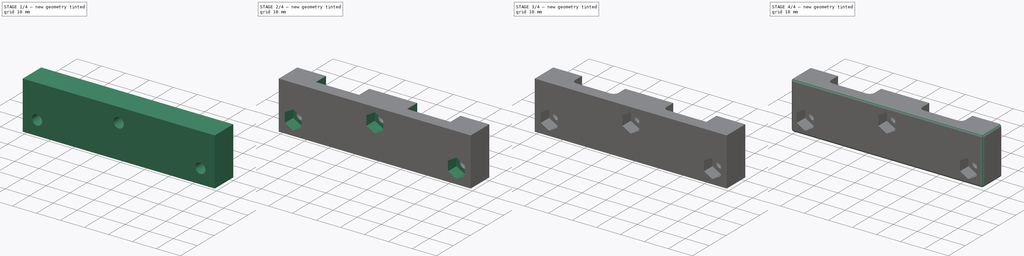
[diagram: build sequence overview — one tinted view per stage of 4, left to right]
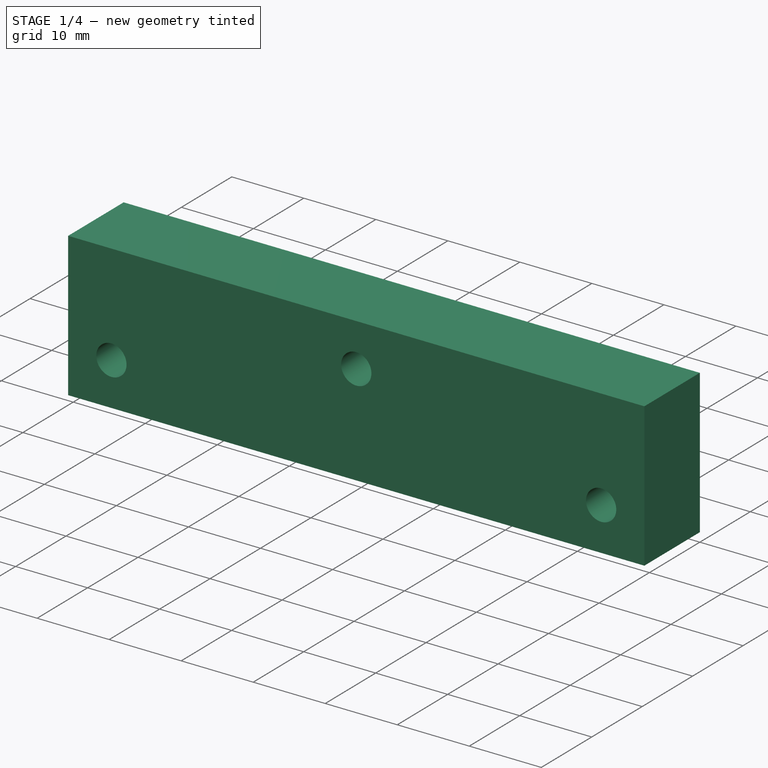
[diagram: stage 1 of 4 — iso view after this stage's code; geometry added in this stage tinted green]
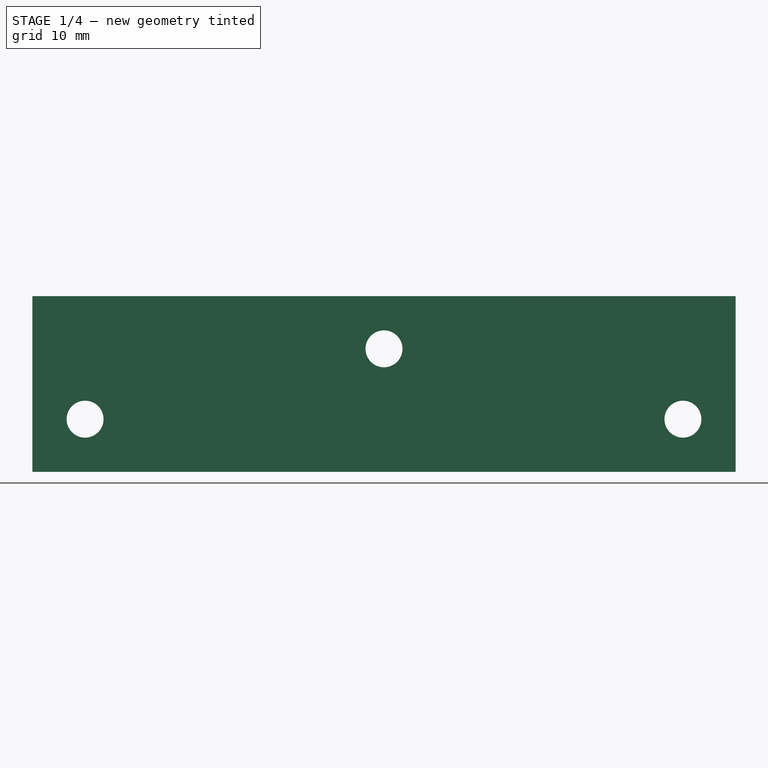
[diagram: stage 1 of 4 — front view after this stage's code; geometry added in this stage tinted green]
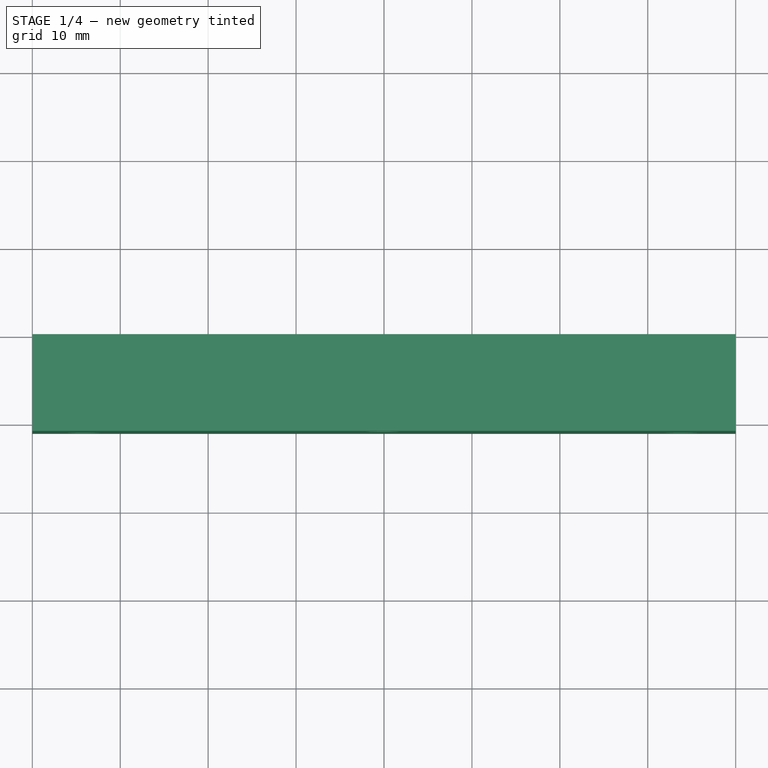
[diagram: stage 1 of 4 — top view after this stage's code; geometry added in this stage tinted green]
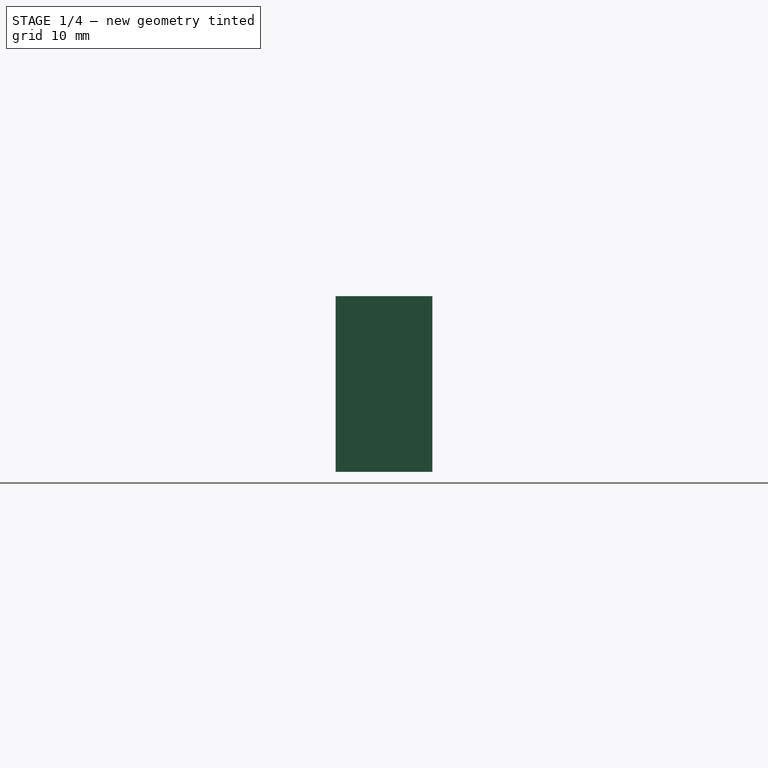
[diagram: stage 1 of 4 — right view after this stage's code; geometry added in this stage tinted green]
FCSTD DOCUMENT  (FreeCAD 0.17R13541 (Git))
Label: back-light
License: All rights reserved
LicenseURL: http://en.wikipedia.org/wiki/All_rights_reserved
objects: PartDesign::Fillet×5, Sketcher::SketchObject×4, PartDesign::Pocket×3, PartDesign::Pad×1, PartDesign::Body×1
note: 18 computed .brp shape members not serialized (recipe doc carries the construction recipe); baked Part::Feature solids carry a one-line shape summary decoded from their .brp

FEATURE [Sketcher::SketchObject] Sketch  label="sketch body"
  MapMode = 5
  Placement = pos=(0,0,0) rot=(1,0,0;1.5708rad)
  Support = -> [XZ_Plane]
  sketch-geometry (4):
    g0: LineSegment StartX=0 StartY=0 StartZ=0 EndX=80 EndY=0 EndZ=0
    g1: LineSegment StartX=80 StartY=0 StartZ=0 EndX=80 EndY=20 EndZ=0
    g2: LineSegment StartX=80 StartY=20 StartZ=0 EndX=0 EndY=20 EndZ=0
    g3: LineSegment StartX=0 StartY=20 StartZ=0 EndX=0 EndY=0 EndZ=0
  constraints (11):
    c: Coincident(g0,g1)
    c: Coincident(g1,g2)
    c: Coincident(g2,g3)
    c: Coincident(g3,g0)
    c: Horizontal(g0)
    c: Horizontal(g2)
    c: Vertical(g1)
    c: Vertical(g3)
    c: Coincident(g0,g-1)
    c: DistanceX(g2,g2) = 80
    c: DistanceY(g3,g3) = 20
FEATURE [PartDesign::Pad] Pad
  Length = 11
  Length2 = 100
  Placement = pos=(0,0,0) rot=(1,0,0;1.5708rad)
  Profile = -> Sketch
  Type = 0
FEATURE [Sketcher::SketchObject] Sketch001  label="M4 holes"
  MapMode = 5
  Placement = pos=(0,-11,0) rot=(1,0,0;1.5708rad)
  Support = -> [Pad]
  sketch-geometry (6):
    g0: Circle CenterX=6 CenterY=6 CenterZ=0 NormalX=0 NormalY=0 NormalZ=1 AngleXU=0 Radius=2.1
    g1: Circle CenterX=40 CenterY=14 CenterZ=0 NormalX=0 NormalY=0 NormalZ=1 AngleXU=0 Radius=2.1
    g2: Circle CenterX=74 CenterY=6 CenterZ=0 NormalX=0 NormalY=0 NormalZ=1 AngleXU=0 Radius=2.1
    g3: LineSegment [constr] StartX=6 StartY=6 StartZ=0 EndX=40 EndY=14 EndZ=0
    g4: LineSegment [constr] StartX=40 StartY=14 StartZ=0 EndX=74 EndY=6 EndZ=0
    g5: LineSegment [constr] StartX=6 StartY=6 StartZ=0 EndX=74 EndY=6 EndZ=0
  constraints (15):
    c: Horizontal(g0,g2)
    c: DistanceX(g0,g2) = 68
    c: Coincident(g3,g0)
    c: Coincident(g3,g1)
    c: Coincident(g4,g1)
    c: Coincident(g4,g2)
    c: Equal(g3,g4)
    c: Radius(g1) = 2.1
    c: Equal(g1,g2)
    c: Equal(g2,g0)
    c: DistanceX(g-1,g1) = 40
    c: DistanceY(g-1,g0) = 6
    c: Coincident(g5,g0)
    c: Coincident(g5,g2)
    c: DistanceY(g-1,g1) = 14
FEATURE [PartDesign::Pocket] Pocket
  BaseFeature = -> Pad
  Length = 5
  Length2 = 100
  Placement = pos=(0,0,0) rot=(1,0,0;1.5708rad)
  Profile = -> Sketch001
  Type = 1
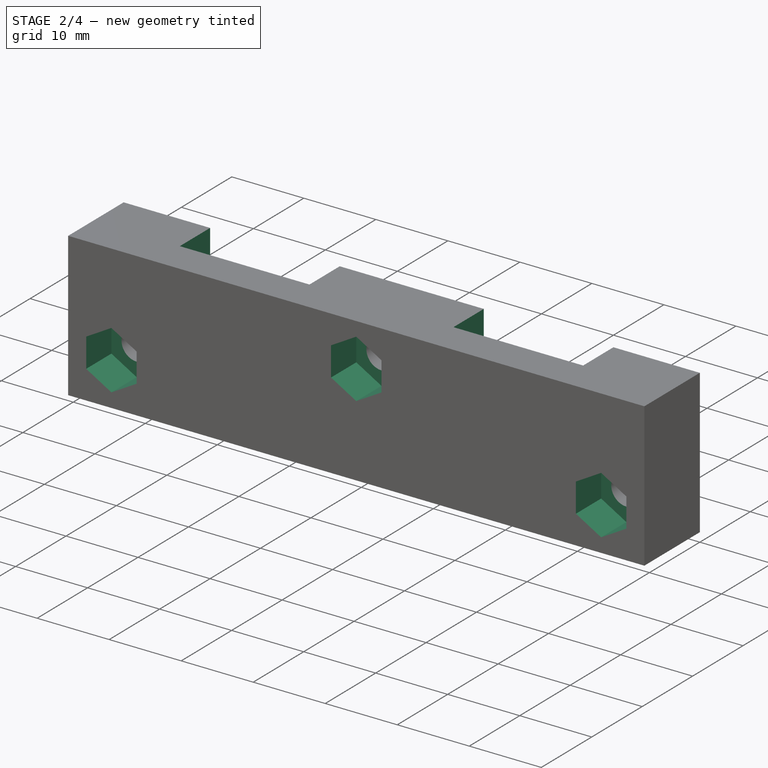
[diagram: stage 2 of 4 — iso view after this stage's code; geometry added in this stage tinted green]
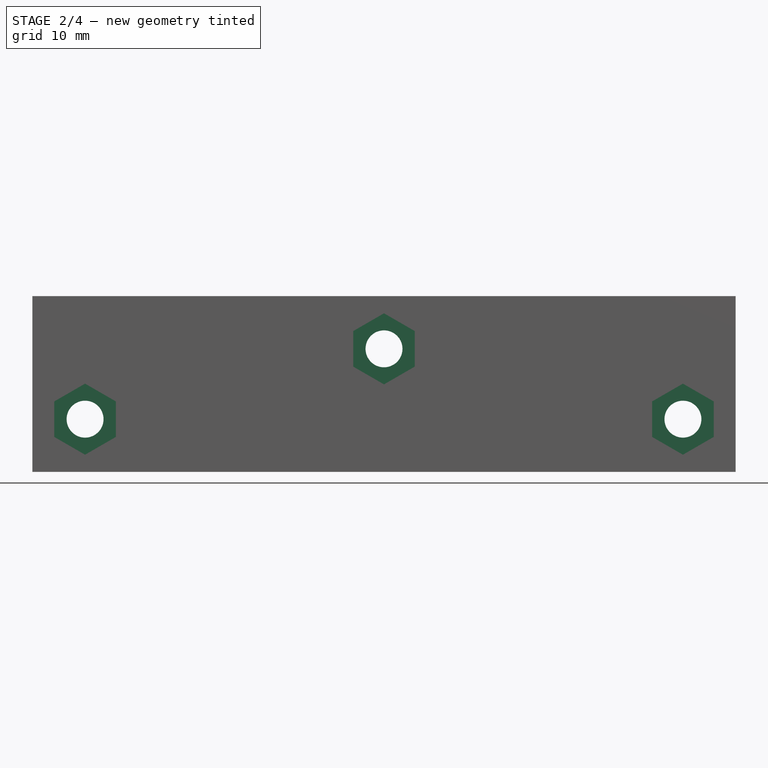
[diagram: stage 2 of 4 — front view after this stage's code; geometry added in this stage tinted green]
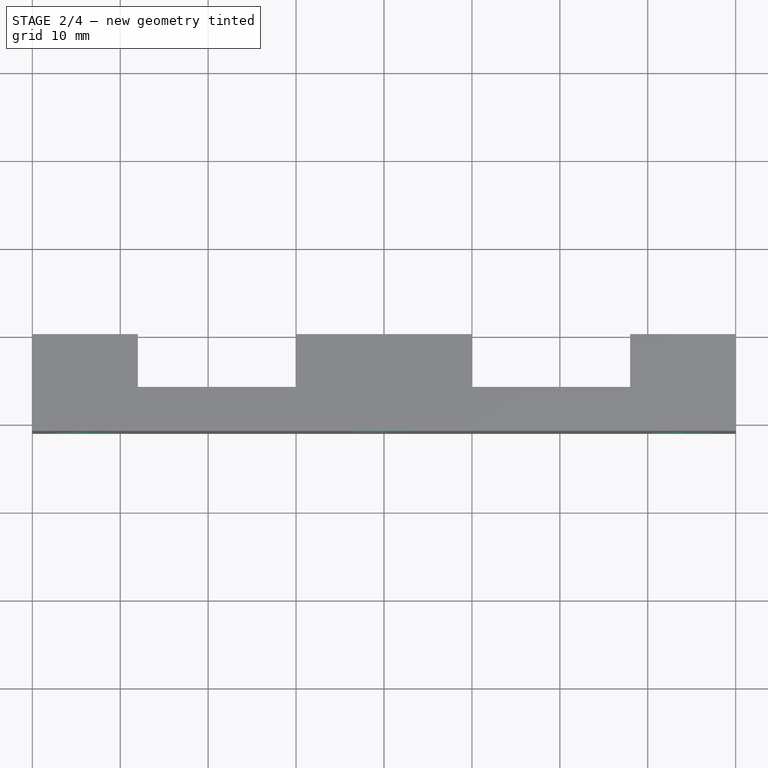
[diagram: stage 2 of 4 — top view after this stage's code; geometry added in this stage tinted green]
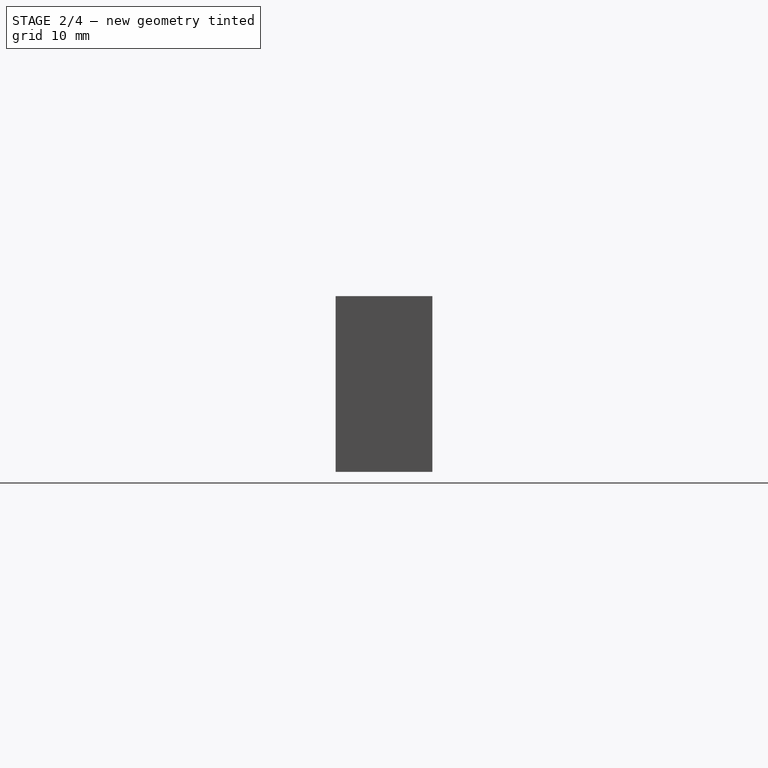
[diagram: stage 2 of 4 — right view after this stage's code; geometry added in this stage tinted green]
FEATURE [Sketcher::SketchObject] Sketch002  label="M4 nuts"
  MapMode = 5
  Placement = pos=(0,-11,0) rot=(1,0,0;1.5708rad)
  Support = -> [Pocket]
  sketch-geometry (24):
    g0: LineSegment StartX=9.5 StartY=3.97927 StartZ=0 EndX=9.5 EndY=8.02073 EndZ=0
    g1: LineSegment StartX=9.5 StartY=8.02073 StartZ=0 EndX=6 EndY=10.0415 EndZ=0
    g2: LineSegment StartX=6 StartY=10.0415 StartZ=0 EndX=2.5 EndY=8.02073 EndZ=0
    g3: LineSegment StartX=2.5 StartY=8.02073 StartZ=0 EndX=2.5 EndY=3.97927 EndZ=0
    g4: LineSegment StartX=2.5 StartY=3.97927 StartZ=0 EndX=6 EndY=1.95855 EndZ=0
    g5: LineSegment StartX=6 StartY=1.95855 StartZ=0 EndX=9.5 EndY=3.97927 EndZ=0
    g6: Circle [constr] CenterX=6 CenterY=6 CenterZ=0 NormalX=0 NormalY=0 NormalZ=1 AngleXU=0 Radius=4.04145
    g7: LineSegment StartX=40 StartY=9.95855 StartZ=0 EndX=43.5 EndY=11.9793 EndZ=0
    g8: LineSegment StartX=43.5 StartY=11.9793 StartZ=0 EndX=43.5 EndY=16.0207 EndZ=0
    g9: LineSegment StartX=43.5 StartY=16.0207 StartZ=0 EndX=40 EndY=18.0415 EndZ=0
    g10: LineSegment StartX=40 StartY=18.0415 StartZ=0 EndX=36.5 EndY=16.0207 EndZ=0
    g11: LineSegment StartX=36.5 StartY=16.0207 StartZ=0 EndX=36.5 EndY=11.9793 EndZ=0
    g12: LineSegment StartX=36.5 StartY=11.9793 StartZ=0 EndX=40 EndY=9.95855 EndZ=0
    g13: Circle [constr] CenterX=40 CenterY=14 CenterZ=0 NormalX=0 NormalY=0 NormalZ=1 AngleXU=0 Radius=4.04145
    g14: LineSegment StartX=77.5 StartY=3.97927 StartZ=0 EndX=77.5 EndY=8.02073 EndZ=0
    g15: LineSegment StartX=77.5 StartY=8.02073 StartZ=0 EndX=74 EndY=10.0415 EndZ=0
    g16: LineSegment StartX=74 StartY=10.0415 StartZ=0 EndX=70.5 EndY=8.02073 EndZ=0
    g17: LineSegment StartX=70.5 StartY=8.02073 StartZ=0 EndX=70.5 EndY=3.97927 EndZ=0
    g18: LineSegment StartX=70.5 StartY=3.97927 StartZ=0 EndX=74 EndY=1.95855 EndZ=0
    g19: LineSegment StartX=74 StartY=1.95855 StartZ=0 EndX=77.5 EndY=3.97927 EndZ=0
    g20: Circle [constr] CenterX=74 CenterY=6 CenterZ=0 NormalX=0 NormalY=0 NormalZ=1 AngleXU=0 Radius=4.04145
    g21: LineSegment [constr] StartX=6 StartY=6 StartZ=0 EndX=74 EndY=6 EndZ=0
    g22: LineSegment [constr] StartX=6 StartY=6 StartZ=0 EndX=40 EndY=14 EndZ=0
    g23: LineSegment [constr] StartX=40 StartY=14 StartZ=0 EndX=74 EndY=6 EndZ=0
  constraints (57):
    c: Coincident(g0,g1)
    c: Coincident(g1,g2)
    c: Coincident(g2,g3)
    c: Coincident(g3,g4)
    c: Coincident(g4,g5)
    c: Coincident(g5,g0)
    c: Equal(g0, g1-g5) x5
    c: PointOnObject(g0,g6)
    c: PointOnObject(g1,g6)
    c: PointOnObject(g2,g6)
    c: PointOnObject(g3,g6)
    c: PointOnObject(g4,g6)
    c: PointOnObject(g5,g6)
    c: Coincident(g7,g8)
    c: Coincident(g8,g9)
    c: Coincident(g9,g10)
    c: Coincident(g10,g11)
    c: Coincident(g11,g12)
    c: Coincident(g12,g7)
    c: Equal(g7, g8-g12) x5
    c: PointOnObject(g7,g13)
    c: PointOnObject(g8,g13)
    c: PointOnObject(g9,g13)
    c: PointOnObject(g10,g13)
    c: PointOnObject(g11,g13)
    c: PointOnObject(g12,g13)
    c: Coincident(g14,g15)
    c: Coincident(g15,g16)
    c: Coincident(g16,g17)
    c: Coincident(g17,g18)
    c: Coincident(g18,g19)
    c: Coincident(g19,g14)
    c: Equal(g14, g15-g19) x5
    c: PointOnObject(g14,g20)
    c: PointOnObject(g15,g20)
    c: PointOnObject(g16,g20)
    c: PointOnObject(g17,g20)
    c: PointOnObject(g18,g20)
    c: PointOnObject(g19,g20)
    c: Vertical(g3)
    c: Vertical(g11)
    c: Vertical(g17)
    c: DistanceX(g3,g0) = 7
    c: DistanceX(g11,g7) = 7
    c: DistanceX(g17,g14) = 7
    c: Coincident(g21,g6)
    c: Coincident(g21,g20)
    c: Horizontal(g21)
    c: Coincident(g22,g6)
    c: Coincident(g22,g13)
    c: Coincident(g23,g13)
    c: Coincident(g23,g20)
    c: Equal(g22,g23)
    c: DistanceX(g6,g20) = 68
    c: DistanceY(g-1,g6) = 6
    c: DistanceY(g-1,g13) = 14
    c: DistanceX(g-1,g13) = 40
FEATURE [PartDesign::Pocket] Pocket001
  BaseFeature = -> Pocket
  Length = 5
  Length2 = 100
  Placement = pos=(0,0,0) rot=(1,0,0;1.5708rad)
  Profile = -> Sketch002
  Type = 0
FEATURE [Sketcher::SketchObject] Sketch003
  MapMode = 5
  Placement = pos=(0,0,20) rot=(0,0,1;3.14159rad)
  Support = -> [Pocket001]
  sketch-geometry (12):
    g0: LineSegment StartX=-68 StartY=0 StartZ=0 EndX=-50 EndY=0 EndZ=0
    g1: LineSegment StartX=-50 StartY=0 StartZ=0 EndX=-50 EndY=6 EndZ=0
    g2: LineSegment StartX=-50 StartY=6 StartZ=0 EndX=-68 EndY=6 EndZ=0
    g3: LineSegment StartX=-68 StartY=6 StartZ=0 EndX=-68 EndY=0 EndZ=0
    g4: LineSegment StartX=-30 StartY=0 StartZ=0 EndX=-12 EndY=0 EndZ=0
    g5: LineSegment StartX=-12 StartY=0 StartZ=0 EndX=-12 EndY=6 EndZ=0
    g6: LineSegment StartX=-12 StartY=6 StartZ=0 EndX=-30 EndY=6 EndZ=0
    g7: LineSegment StartX=-30 StartY=6 StartZ=0 EndX=-30 EndY=0 EndZ=0
    g8: GeomPoint X=-80 Y=0 Z=0
    g9: LineSegment [constr] StartX=-80 StartY=0 StartZ=0 EndX=-68 EndY=0 EndZ=0
    g10: LineSegment [constr] StartX=-50 StartY=0 StartZ=0 EndX=-30 EndY=0 EndZ=0
    g11: LineSegment [constr] StartX=-12 StartY=0 StartZ=0 EndX=0 EndY=0 EndZ=0
  constraints (32):
    c: Coincident(g0,g1)
    c: Coincident(g1,g2)
    c: Coincident(g2,g3)
    c: Coincident(g3,g0)
    c: Horizontal(g0)
    c: Horizontal(g2)
    c: Vertical(g1)
    c: Vertical(g3)
    c: PointOnObject(g0,g-1)
    c: Coincident(g4,g5)
    c: Coincident(g5,g6)
    c: Coincident(g6,g7)
    c: Coincident(g7,g4)
    c: Horizontal(g4)
    c: Horizontal(g6)
    c: Vertical(g5)
    c: Vertical(g7)
    c: PointOnObject(g4,g-1)
    c: Equal(g1,g7)
    c: Equal(g2,g6)
    c: PointOnObject(g8,g-1)
    c: DistanceX(g8,g-1) = 80
    c: Coincident(g9,g8)
    c: Coincident(g9,g0)
    c: Coincident(g10,g0)
    c: Coincident(g10,g4)
    c: Coincident(g11,g4)
    c: Coincident(g11,g-1)
    c: Equal(g9,g11)
    c: DistanceY(g3,g3) = 6
    c: DistanceX(g10,g10) = 20
    c: DistanceX(g11,g11) = 12
FEATURE [PartDesign::Pocket] Pocket002
  BaseFeature = -> Pocket001
  Length = 5
  Length2 = 100
  Placement = pos=(0,0,0) rot=(1,0,0;1.5708rad)
  Profile = -> Sketch003
  Type = 1
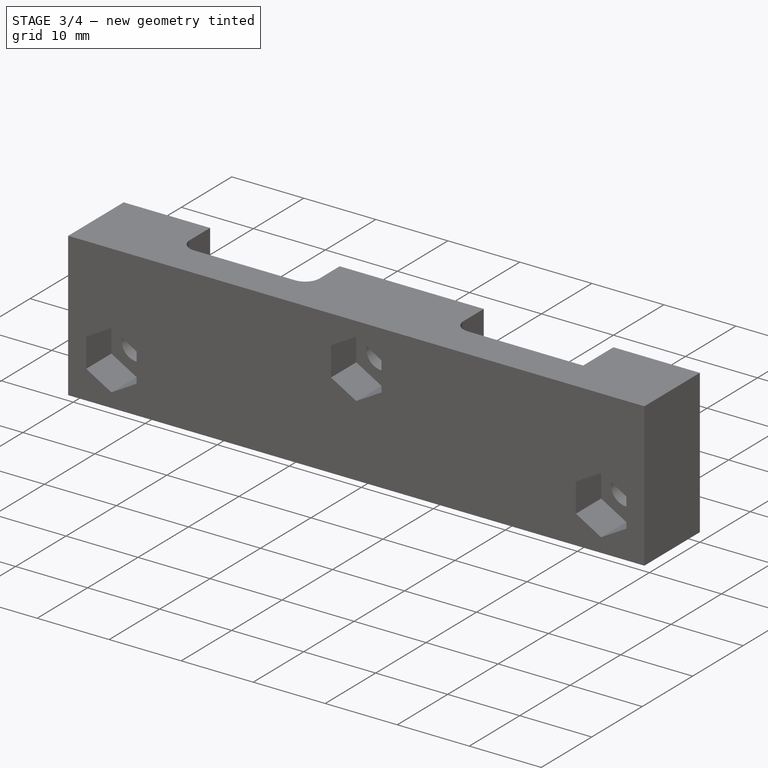
[diagram: stage 3 of 4 — iso view after this stage's code; geometry added in this stage tinted green]
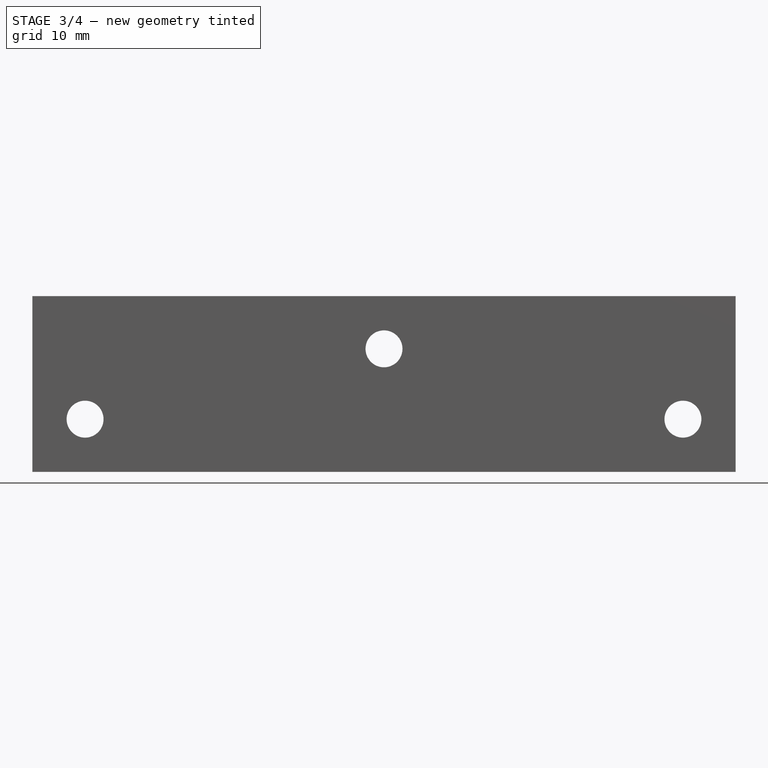
[diagram: stage 3 of 4 — front view after this stage's code; geometry added in this stage tinted green]
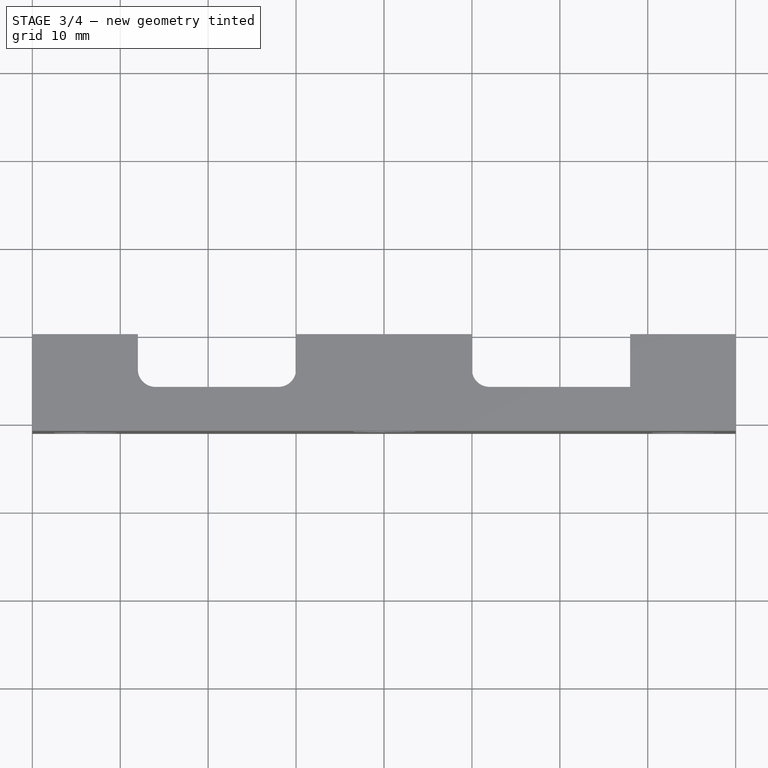
[diagram: stage 3 of 4 — top view after this stage's code; geometry added in this stage tinted green]
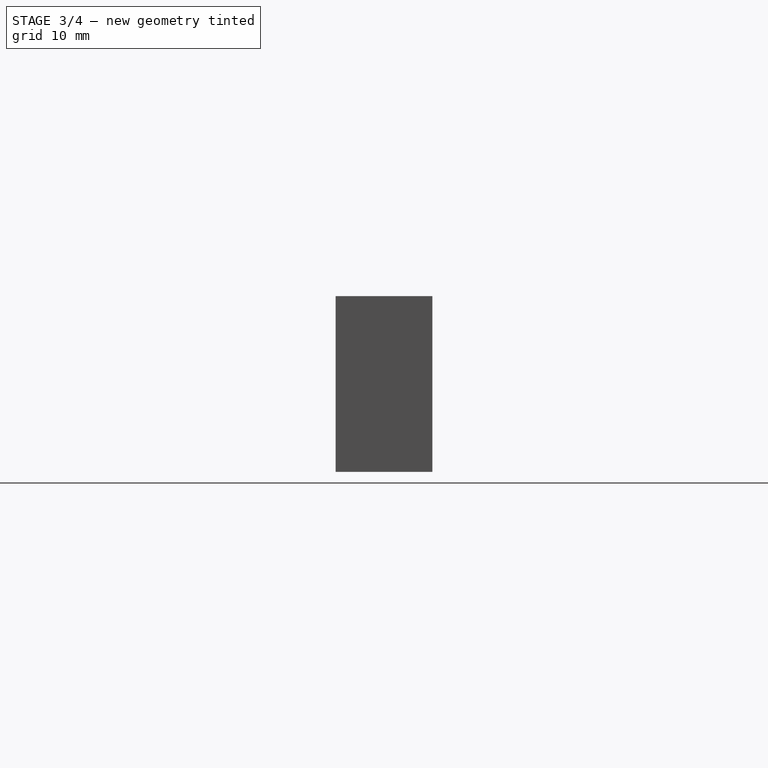
[diagram: stage 3 of 4 — right view after this stage's code; geometry added in this stage tinted green]
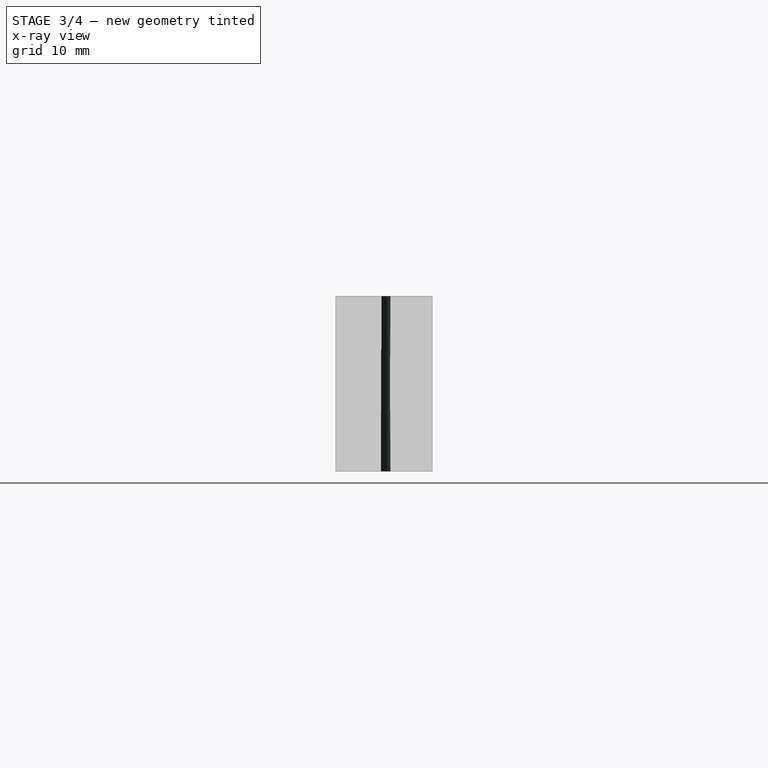
[diagram: stage 3 of 4 — x-ray composite at the right view; earlier geometry ghosted, this stage's added geometry solid]
FEATURE [PartDesign::Fillet] Fillet
  Base = -> Pocket002 [Edge27]
  BaseFeature = -> Pocket002
  Placement = pos=(0,0,0) rot=(1,0,0;1.5708rad)
  Radius = 2
FEATURE [PartDesign::Fillet] Fillet001
  Base = -> Fillet [Edge29]
  BaseFeature = -> Fillet
  Placement = pos=(0,0,0) rot=(1,0,0;1.5708rad)
  Radius = 2
FEATURE [PartDesign::Fillet] Fillet002
  Base = -> Fillet001 [Edge17]
  BaseFeature = -> Fillet001
  Placement = pos=(0,0,0) rot=(1,0,0;1.5708rad)
  Radius = 2
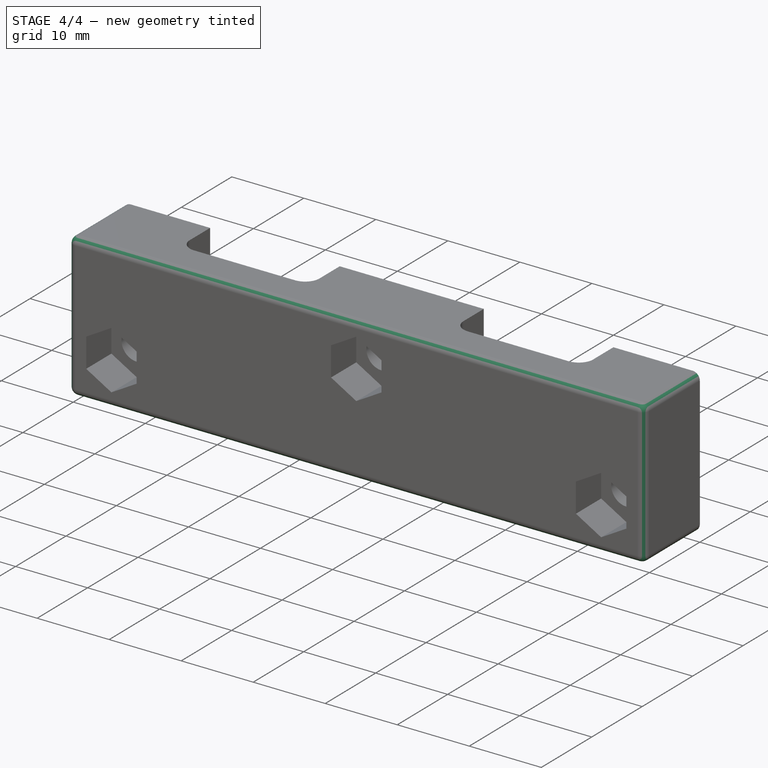
[diagram: stage 4 of 4 — iso view after this stage's code; geometry added in this stage tinted green]
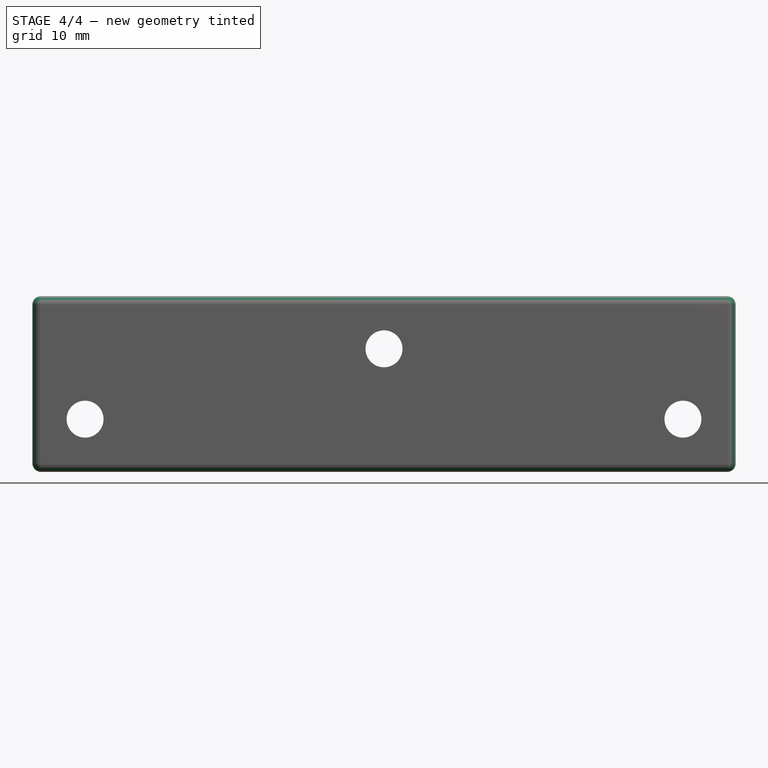
[diagram: stage 4 of 4 — front view after this stage's code; geometry added in this stage tinted green]
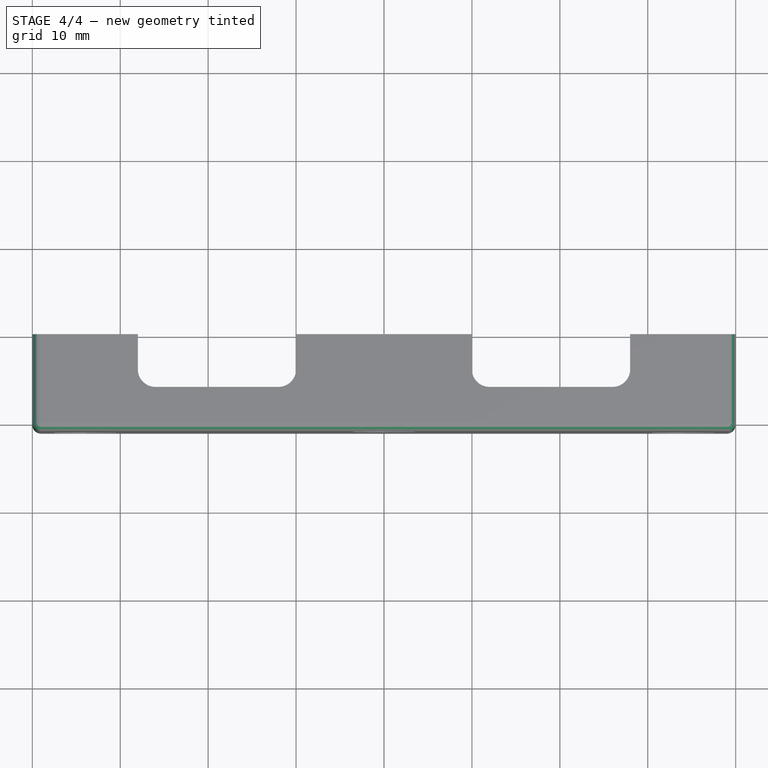
[diagram: stage 4 of 4 — top view after this stage's code; geometry added in this stage tinted green]
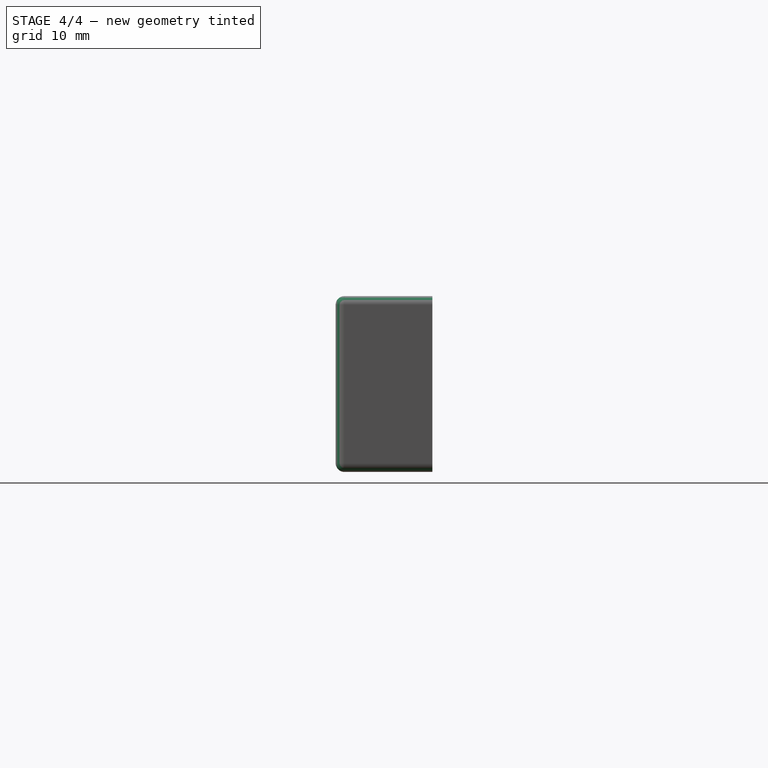
[diagram: stage 4 of 4 — right view after this stage's code; geometry added in this stage tinted green]
FEATURE [PartDesign::Fillet] Fillet003
  Base = -> Fillet002 [Edge60]
  BaseFeature = -> Fillet002
  Placement = pos=(0,0,0) rot=(1,0,0;1.5708rad)
  Radius = 2
FEATURE [PartDesign::Fillet] Fillet004
  Base = -> Fillet003 [Edge12,Edge10,Edge38,Edge39,Edge35,Edge8,Edge34,Edge60]
  BaseFeature = -> Fillet003
  Placement = pos=(0,0,0) rot=(1,0,0;1.5708rad)
  Radius = 1
FEATURE [PartDesign::Body] Body
  Group = -> [Sketch,Pad,Sketch001,Pocket,Sketch002,Pocket001,Sketch003,Pocket002,Fillet,Fillet001,Fillet002,Fillet003,Fillet004]
  Origin = -> Origin
  Tip = -> Fillet004
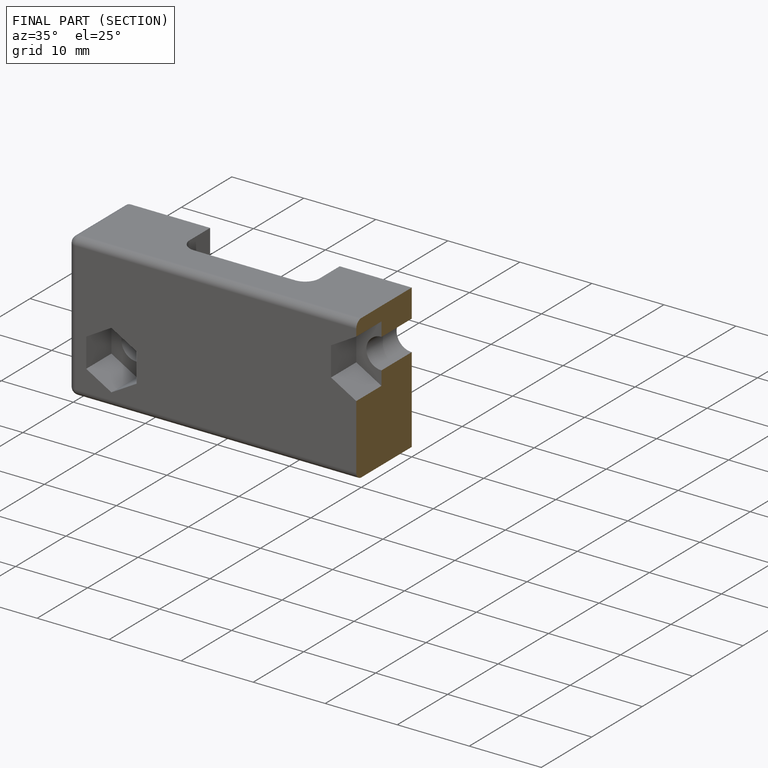
[diagram: finished part — half-section view (interior)]
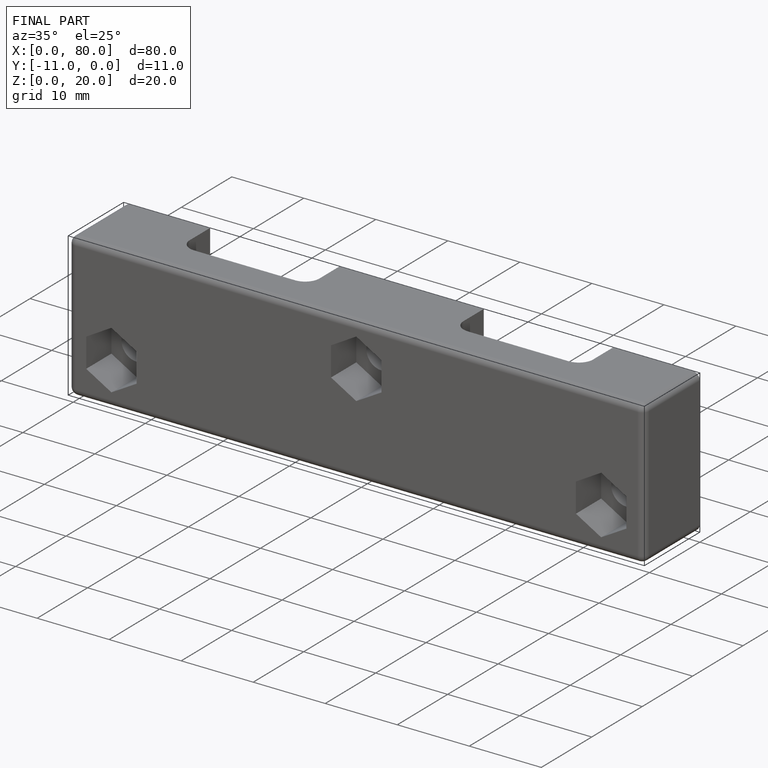
[diagram: finished part — iso view with bounding-box wireframe]
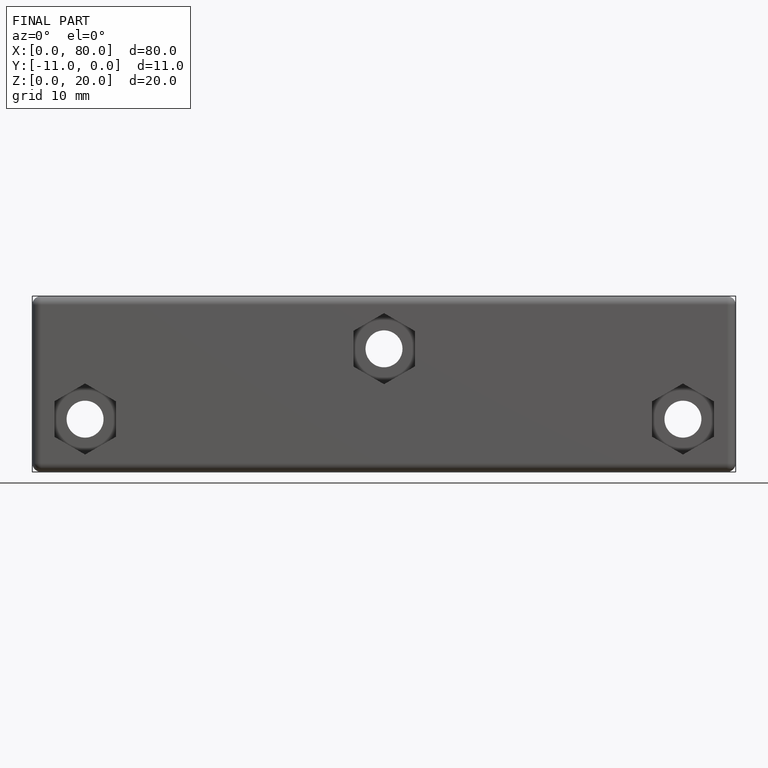
[diagram: finished part — front view with bounding-box wireframe]
